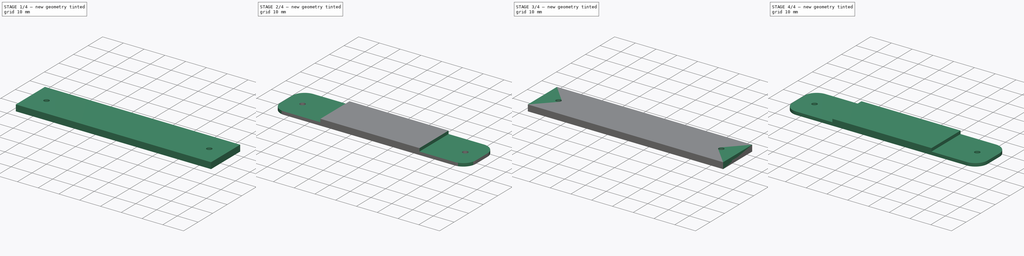
[diagram: build sequence overview — one tinted view per stage of 4, left to right]
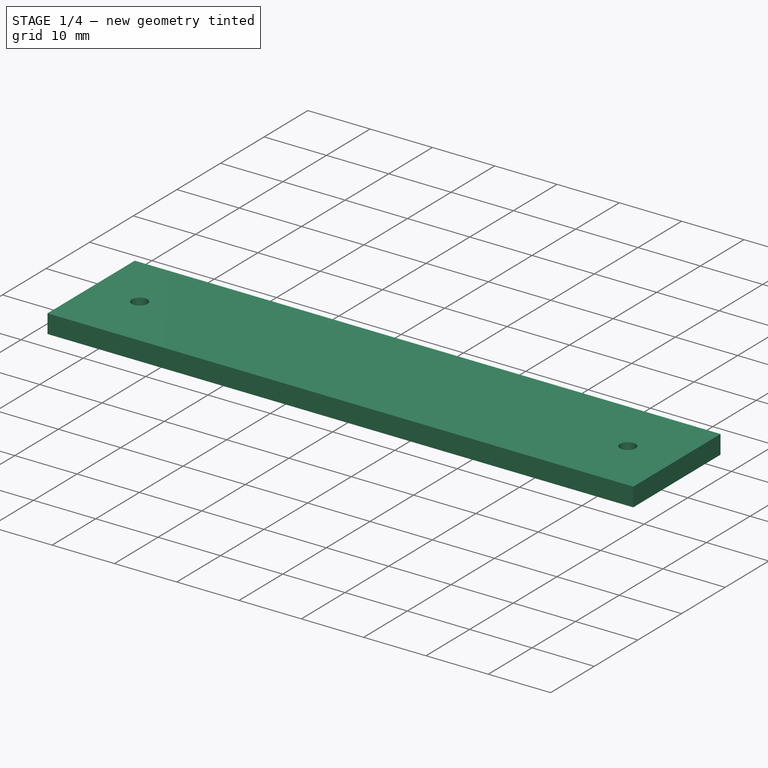
[diagram: stage 1 of 4 — iso view after this stage's code; geometry added in this stage tinted green]
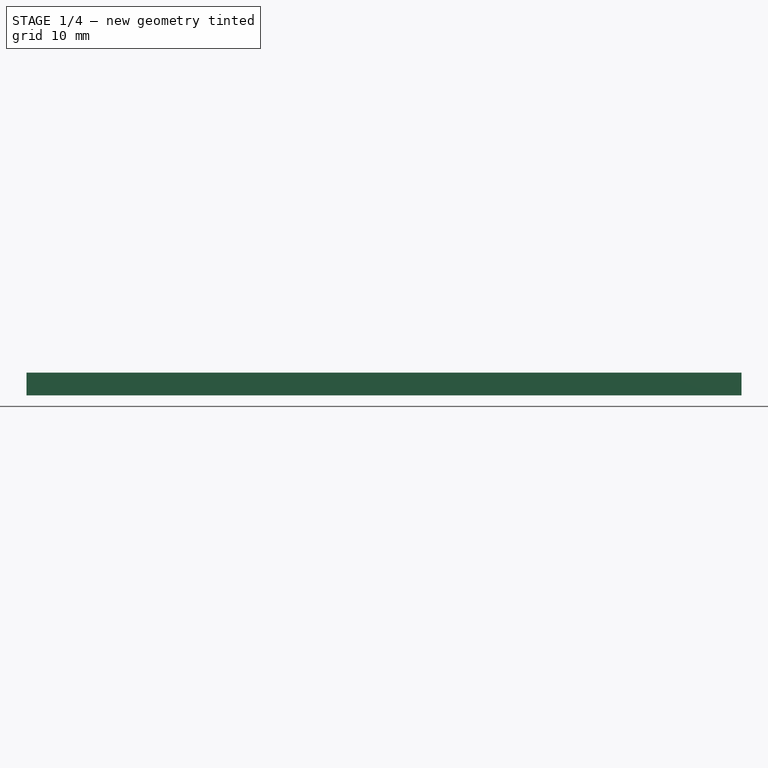
[diagram: stage 1 of 4 — front view after this stage's code; geometry added in this stage tinted green]
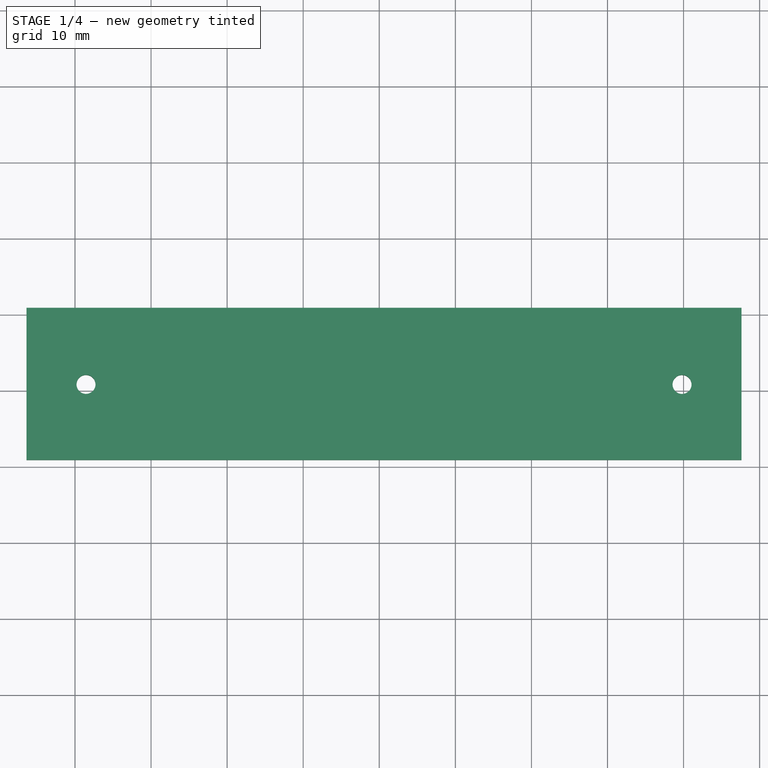
[diagram: stage 1 of 4 — top view after this stage's code; geometry added in this stage tinted green]
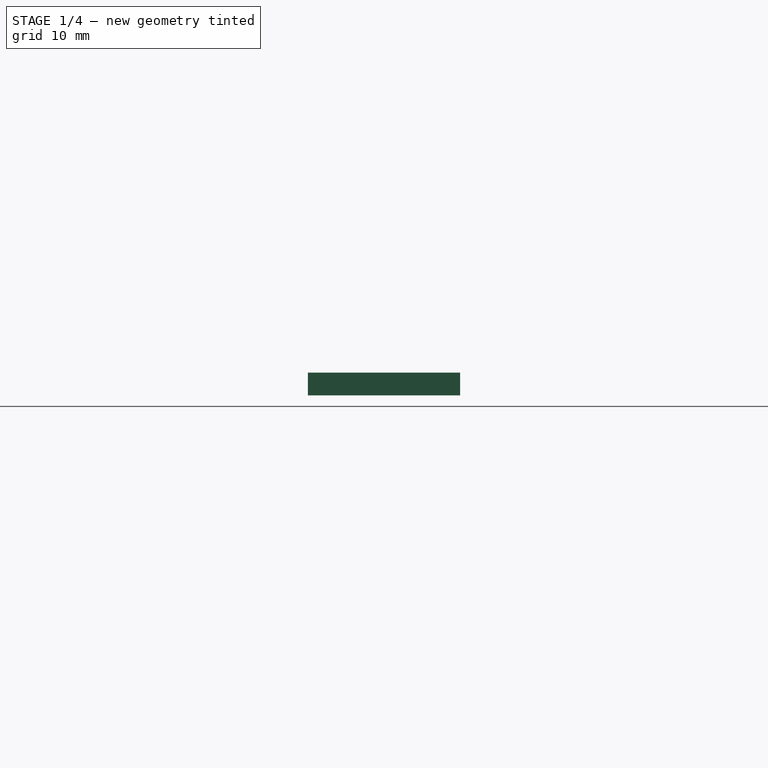
[diagram: stage 1 of 4 — right view after this stage's code; geometry added in this stage tinted green]
FCSTD DOCUMENT  (FreeCAD 0.21R33771 (Git))
Label: Lighting board and cover Plate assembly
License: All rights reserved
LicenseURL: http://en.wikipedia.org/wiki/All_rights_reserved
objects: Part::Feature×52, App::Part×51, Sketcher::SketchObject×8, PartDesign::Pocket×4, Part::Extrusion×2, PartDesign::FeatureBase×2, PartDesign::Hole×2, PartDesign::Fillet×2, PartDesign::Body×2, App::MeasureDistance×1
note: 82 computed .brp shape members not serialized (recipe doc carries the construction recipe); baked Part::Feature solids carry a one-line shape summary decoded from their .brp

FEATURE [PartDesign::Body] Body
  BaseFeature = -> Extrude
  Group = -> [BaseFeature,Sketch001,Hole,Fillet,Sketch002,Pocket,Sketch003,Pocket001]
  Origin = -> Origin048
  Tip = -> Pocket001
FEATURE [App::Part] Part002  label="B1 Top plate"
  Group = -> [Body,Sketch,Extrude]
  Origin = -> Origin047
FEATURE [App::Part] Part004  label="Light 1"
  Group = -> [Part,Part__Feature048,Part__Feature049,Part002]
  Origin = -> Origin095
FEATURE [Sketcher::SketchObject] Sketch004
  FullyConstrained = false
  sketch-geometry (5):
    g0: LineSegment StartX=-46.38 StartY=20.9 StartZ=0 EndX=47.62 EndY=20.9 EndZ=0
    g1: LineSegment StartX=47.62 StartY=20.9 StartZ=0 EndX=47.62 EndY=0.899999 EndZ=0
    g2: LineSegment StartX=47.62 StartY=0.899999 StartZ=0 EndX=-46.38 EndY=0.899999 EndZ=0
    g3: LineSegment StartX=-46.38 StartY=0.899999 StartZ=0 EndX=-46.38 EndY=20.9 EndZ=0
    g4: LineSegment StartX=-41.3775 StartY=18.375 StartZ=0 EndX=-41.3775 EndY=20.9 EndZ=0
  constraints (11):
    c: Coincident(g0,g1)
    c: Coincident(g1,g2)
    c: Coincident(g2,g3)
    c: Coincident(g3,g0)
    c: Horizontal(g0)
    c: Horizontal(g2)
    c: Vertical(g1)
    c: Vertical(g3)
    c: DistanceX(g0,g0) = 94
    c: DistanceY(g3,g3) = 20
    c: Vertical(g4)
FEATURE [Part::Extrusion] Extrude001
  Base = -> Sketch004
  Dir = (0,0,1)
  DirMode = 2
  FaceMakerClass = Part::FaceMakerBullseye
  LengthFwd = 3
  LengthRev = 0
  Solid = true
  Symmetric = false
FEATURE [PartDesign::FeatureBase] BaseFeature001
  BaseFeature = -> Extrude001
FEATURE [Sketcher::SketchObject] Sketch005
  FullyConstrained = false
  MapMode = 5
  Placement = pos=(0,0,3) rot=(0,0,1;0rad)
  Support = -> [BaseFeature001]
  sketch-geometry (2):
    g0: Circle CenterX=-38.55 CenterY=10.83 CenterZ=0 NormalX=0 NormalY=0 NormalZ=1 AngleXU=0 Radius=1.25
    g1: Circle CenterX=39.8 CenterY=10.8236 CenterZ=0 NormalX=0 NormalY=0 NormalZ=1 AngleXU=0 Radius=1.25
  constraints (2):
    c: Diameter(g0) = 2.5
    c: Diameter(g1) = 2.5
FEATURE [PartDesign::Hole] Hole001
  BaseFeature = -> BaseFeature001
  CustomThreadClearance = 0
  Depth = 3
  DepthType = 0
  Diameter = 2.5
  DrillForDepth = false
  DrillPoint = 0
  DrillPointAngle = 118
  HoleCutCountersinkAngle = 90
  HoleCutCustomValues = false
  HoleCutDepth = 0
  HoleCutDiameter = 6.1
  HoleCutType = 0
  ModelThread = false
  Profile = -> Sketch005
  Tapered = false
  TaperedAngle = 90
  ThreadClass = 0
  ThreadDepth = 3
  ThreadDepthType = 0
  ThreadDirection = 0
  ThreadFit = 0
  ThreadSize = 0
  ThreadType = 0
  Threaded = false
  UseCustomThreadClearance = false
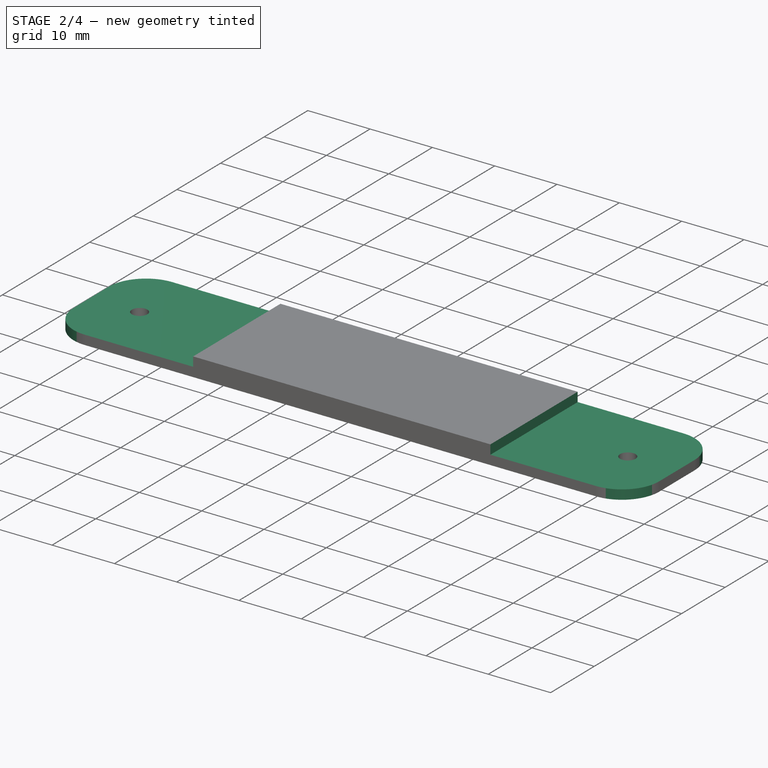
[diagram: stage 2 of 4 — iso view after this stage's code; geometry added in this stage tinted green]
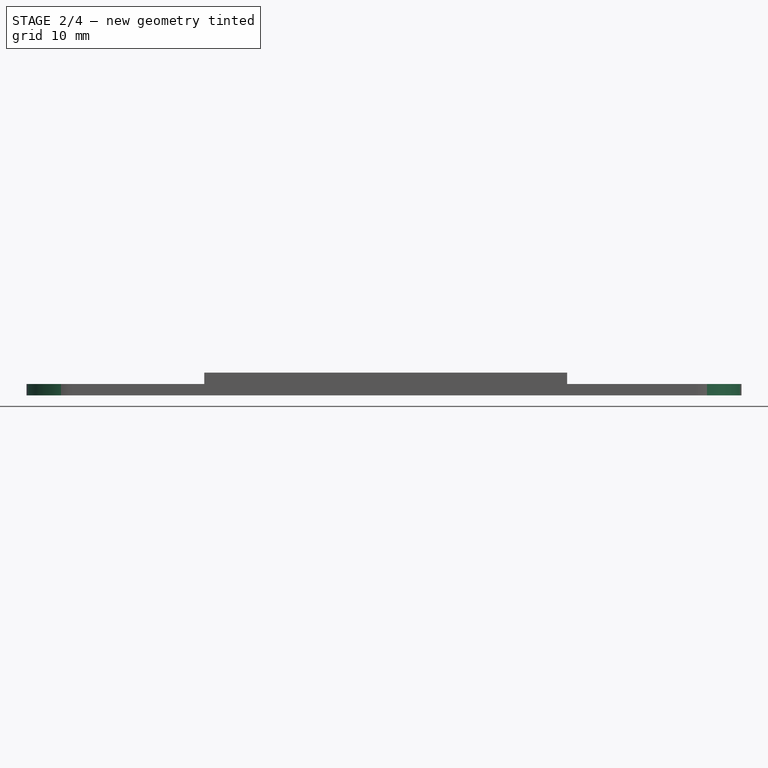
[diagram: stage 2 of 4 — front view after this stage's code; geometry added in this stage tinted green]
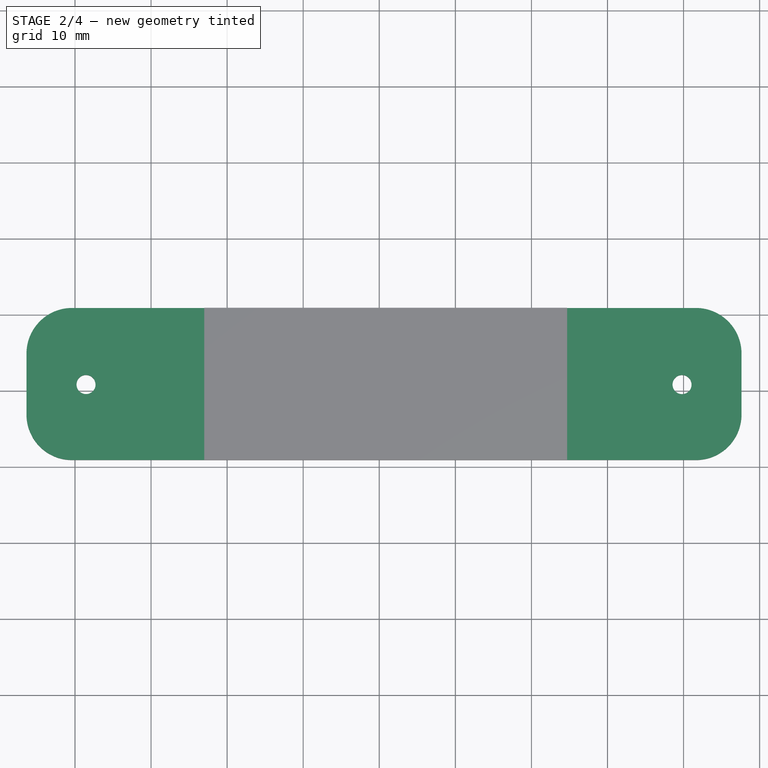
[diagram: stage 2 of 4 — top view after this stage's code; geometry added in this stage tinted green]
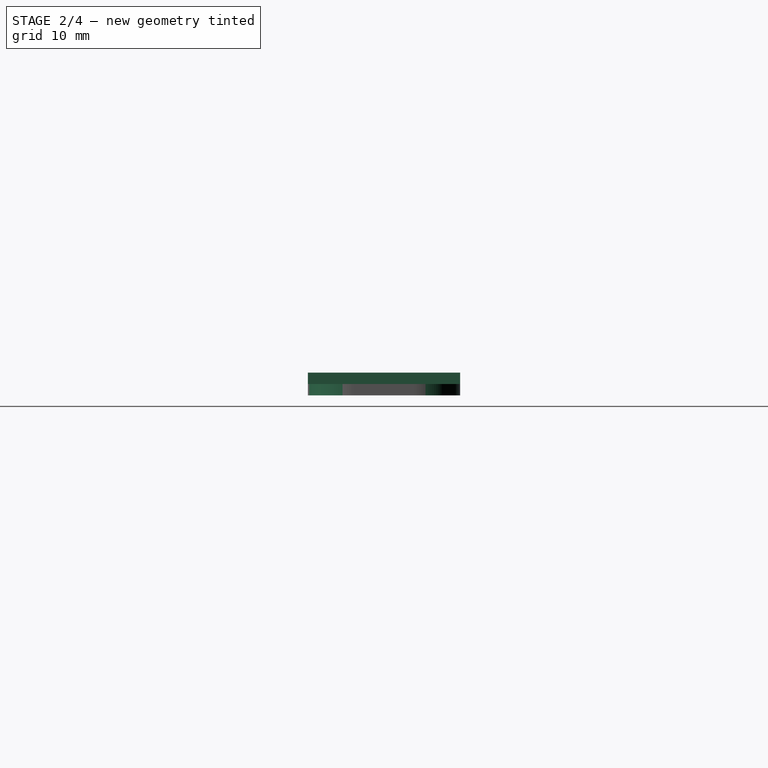
[diagram: stage 2 of 4 — right view after this stage's code; geometry added in this stage tinted green]
FEATURE [PartDesign::Fillet] Fillet001
  Base = -> Hole001 [Edge5,Edge1,Edge2,Edge8]
  BaseFeature = -> Hole001
  Radius = 6
  SupportTransform = false
  UseAllEdges = false
FEATURE [Sketcher::SketchObject] Sketch006
  FullyConstrained = false
  MapMode = 5
  Placement = pos=(0,0,3) rot=(0,0,1;0rad)
  Support = -> [Fillet001]
  sketch-geometry (4):
    g0: LineSegment StartX=-23.0016 StartY=0.200001 StartZ=0 EndX=-46.4016 EndY=0.200001 EndZ=0
    g1: LineSegment StartX=-46.4016 StartY=0.200001 StartZ=0 EndX=-46.4016 EndY=21.2 EndZ=0
    g2: LineSegment StartX=-46.4016 StartY=21.2 StartZ=0 EndX=-23.0016 EndY=21.2 EndZ=0
    g3: LineSegment StartX=-23.0016 StartY=21.2 StartZ=0 EndX=-23.0016 EndY=0.200001 EndZ=0
  constraints (10):
    c: Coincident(g0,g1)
    c: Coincident(g1,g2)
    c: Coincident(g2,g3)
    c: Coincident(g3,g0)
    c: Horizontal(g0)
    c: Horizontal(g2)
    c: Vertical(g1)
    c: Vertical(g3)
    c: DistanceX(g2,g2) = 23.4
    c: DistanceY(g1,g1) = 21
FEATURE [PartDesign::Pocket] Pocket002
  BaseFeature = -> Fillet001
  Direction = (0,0,-1)
  Length = 1.5
  Length2 = 5
  Profile = -> Sketch006
  ReferenceAxis = -> Sketch006 [N_Axis]
  Type = 0
FEATURE [Sketcher::SketchObject] Sketch007
  FullyConstrained = false
  MapMode = 5
  Placement = pos=(0,0,3) rot=(0,0,1;0rad)
  Support = -> [Pocket002]
  sketch-geometry (4):
    g0: LineSegment StartX=24.7 StartY=21.1996 StartZ=0 EndX=48.1 EndY=21.1996 EndZ=0
    g1: LineSegment StartX=48.1 StartY=21.1996 StartZ=0 EndX=48.1 EndY=0.199637 EndZ=0
    g2: LineSegment StartX=48.1 StartY=0.199637 StartZ=0 EndX=24.7 EndY=0.199637 EndZ=0
    g3: LineSegment StartX=24.7 StartY=0.199637 StartZ=0 EndX=24.7 EndY=21.1996 EndZ=0
  constraints (10):
    c: Coincident(g0,g1)
    c: Coincident(g1,g2)
    c: Coincident(g2,g3)
    c: Coincident(g3,g0)
    c: Horizontal(g0)
    c: Horizontal(g2)
    c: Vertical(g1)
    c: Vertical(g3)
    c: DistanceX(g0,g0) = 23.4
    c: DistanceY(g3,g3) = 21
FEATURE [PartDesign::Pocket] Pocket003
  BaseFeature = -> Pocket002
  Direction = (0,0,-1)
  Length = 1.5
  Length2 = 5
  Profile = -> Sketch007
  ReferenceAxis = -> Sketch007 [N_Axis]
  Type = 0
FEATURE [PartDesign::Body] Body001
  BaseFeature = -> Extrude001
  Group = -> [BaseFeature001,Sketch005,Hole001,Fillet001,Sketch006,Pocket002,Sketch007,Pocket003]
  Origin = -> Origin098
  Tip = -> Pocket003
FEATURE [App::Part] Part006  label="B2 Top plate"
  Group = -> [Body001,Sketch004,Extrude001]
  Origin = -> Origin097
  Placement = pos=(-0.62,-21.79,0) rot=(0,0,1;0rad)
FEATURE [App::Part] Part005  label="Light 2"
  Group = -> [Part003,Part__Feature097,Part__Feature098,Part006]
  Origin = -> Origin096
FEATURE [App::MeasureDistance] Distance  label="Distance: 22.79241 mm"
  Distance = 22.7924
  P1 = (47.62,10.8236,1.5)
  P2 = (24.8282,10.9912,1.5)
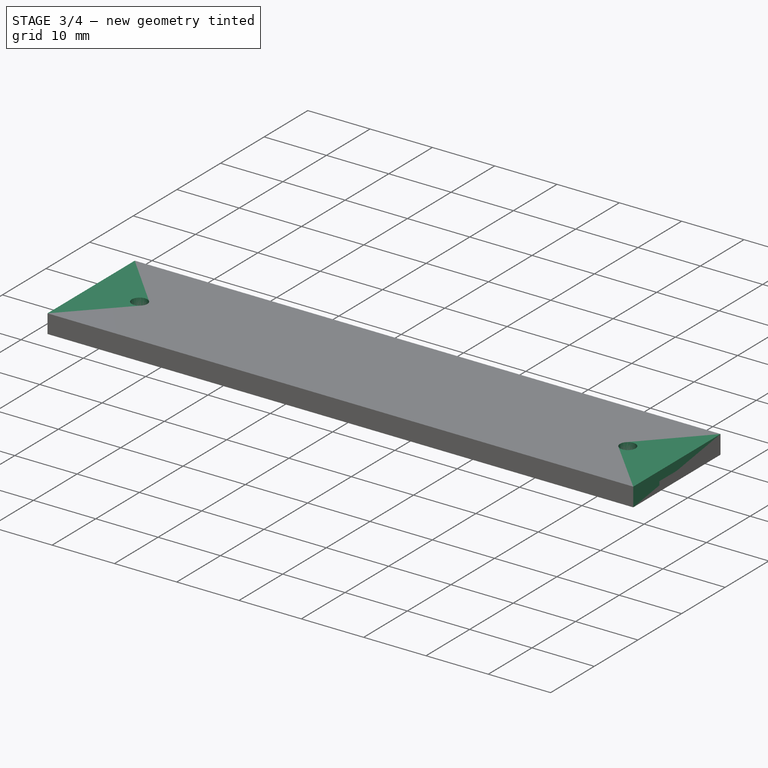
[diagram: stage 3 of 4 — iso view after this stage's code; geometry added in this stage tinted green]
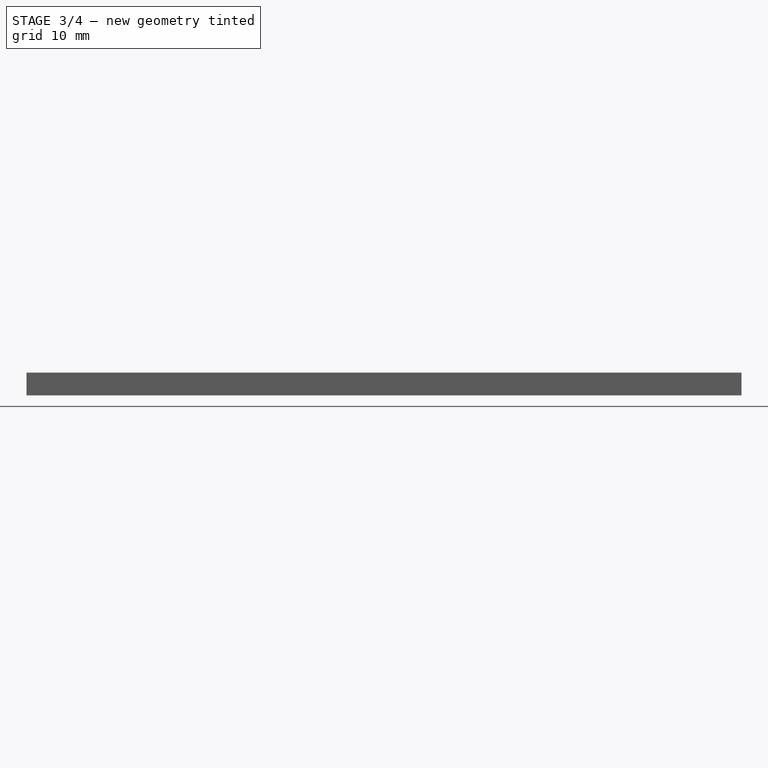
[diagram: stage 3 of 4 — front view after this stage's code; geometry added in this stage tinted green]
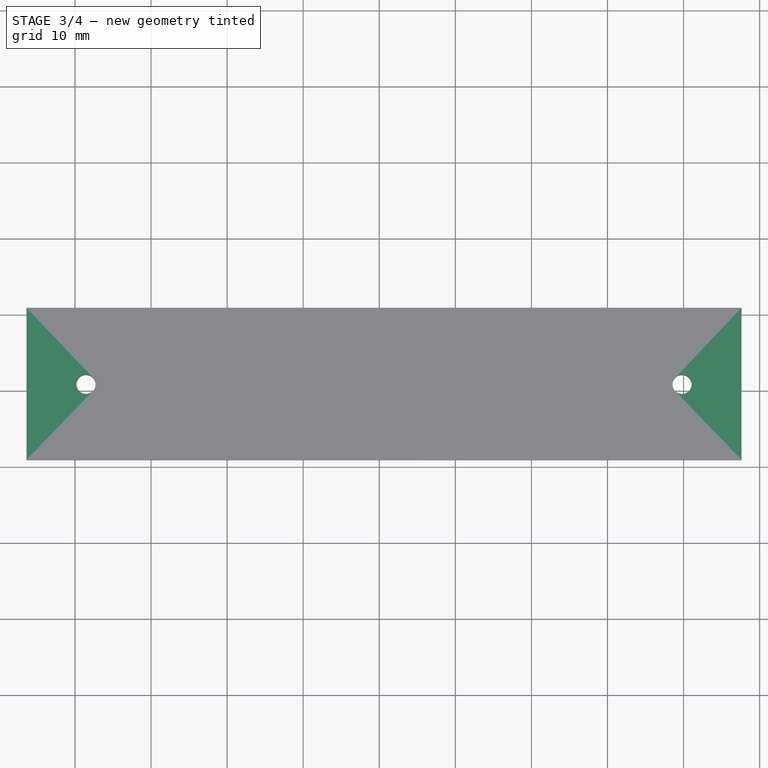
[diagram: stage 3 of 4 — top view after this stage's code; geometry added in this stage tinted green]
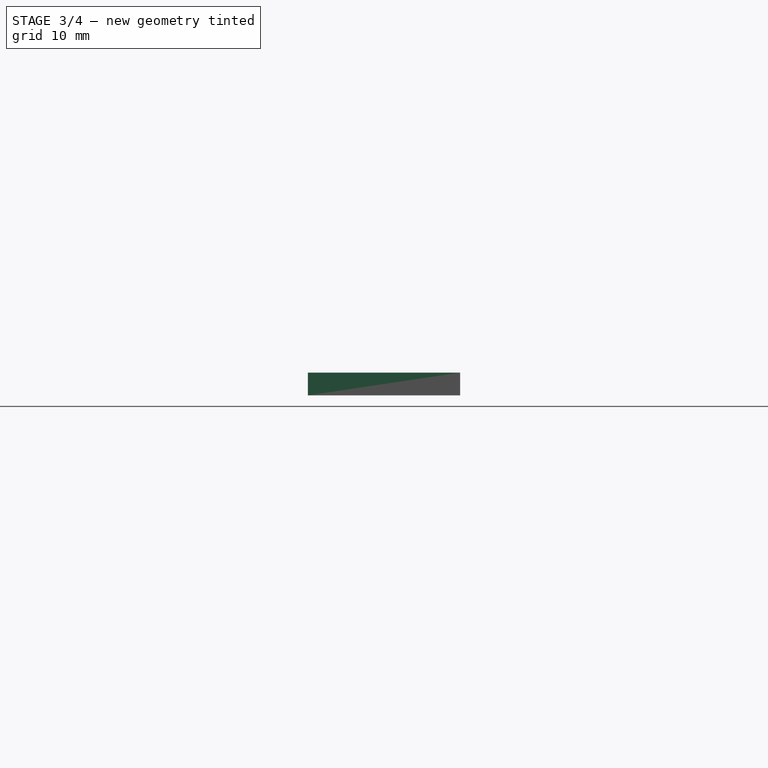
[diagram: stage 3 of 4 — right view after this stage's code; geometry added in this stage tinted green]
FEATURE [Sketcher::SketchObject] Sketch
  FullyConstrained = false
  sketch-geometry (5):
    g0: LineSegment StartX=-46.38 StartY=20.9 StartZ=0 EndX=47.62 EndY=20.9 EndZ=0
    g1: LineSegment StartX=47.62 StartY=20.9 StartZ=0 EndX=47.62 EndY=0.899999 EndZ=0
    g2: LineSegment StartX=47.62 StartY=0.899999 StartZ=0 EndX=-46.38 EndY=0.899999 EndZ=0
    g3: LineSegment StartX=-46.38 StartY=0.899999 StartZ=0 EndX=-46.38 EndY=20.9 EndZ=0
    g4: LineSegment StartX=-41.3775 StartY=18.375 StartZ=0 EndX=-41.3775 EndY=20.9 EndZ=0
  constraints (11):
    c: Coincident(g0,g1)
    c: Coincident(g1,g2)
    c: Coincident(g2,g3)
    c: Coincident(g3,g0)
    c: Horizontal(g0)
    c: Horizontal(g2)
    c: Vertical(g1)
    c: Vertical(g3)
    c: DistanceX(g0,g0) = 94
    c: DistanceY(g3,g3) = 20
    c: Vertical(g4)
FEATURE [Part::Extrusion] Extrude
  Base = -> Sketch
  Dir = (0,0,1)
  DirMode = 2
  FaceMakerClass = Part::FaceMakerBullseye
  LengthFwd = 3
  LengthRev = 0
  Solid = true
  Symmetric = false
FEATURE [PartDesign::FeatureBase] BaseFeature
  BaseFeature = -> Extrude
FEATURE [Sketcher::SketchObject] Sketch001
  FullyConstrained = false
  MapMode = 5
  Placement = pos=(0,0,3) rot=(0,0,1;0rad)
  Support = -> [BaseFeature]
  sketch-geometry (2):
    g0: Circle CenterX=-38.55 CenterY=10.83 CenterZ=0 NormalX=0 NormalY=0 NormalZ=1 AngleXU=0 Radius=1.25
    g1: Circle CenterX=39.8 CenterY=10.8236 CenterZ=0 NormalX=0 NormalY=0 NormalZ=1 AngleXU=0 Radius=1.25
  constraints (2):
    c: Diameter(g0) = 2.5
    c: Diameter(g1) = 2.5
FEATURE [PartDesign::Hole] Hole
  BaseFeature = -> BaseFeature
  CustomThreadClearance = 0
  Depth = 3
  DepthType = 0
  Diameter = 2.5
  DrillForDepth = false
  DrillPoint = 0
  DrillPointAngle = 118
  HoleCutCountersinkAngle = 90
  HoleCutCustomValues = false
  HoleCutDepth = 0
  HoleCutDiameter = 6.1
  HoleCutType = 0
  ModelThread = false
  Profile = -> Sketch001
  Tapered = false
  TaperedAngle = 90
  ThreadClass = 0
  ThreadDepth = 3
  ThreadDepthType = 0
  ThreadDirection = 0
  ThreadFit = 0
  ThreadSize = 0
  ThreadType = 0
  Threaded = false
  UseCustomThreadClearance = false
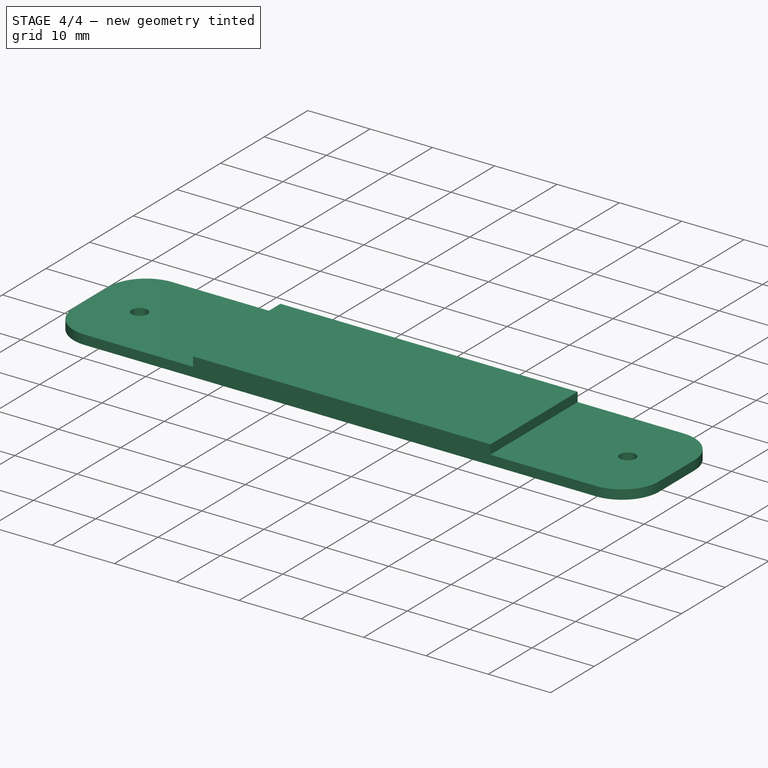
[diagram: stage 4 of 4 — iso view after this stage's code; geometry added in this stage tinted green]
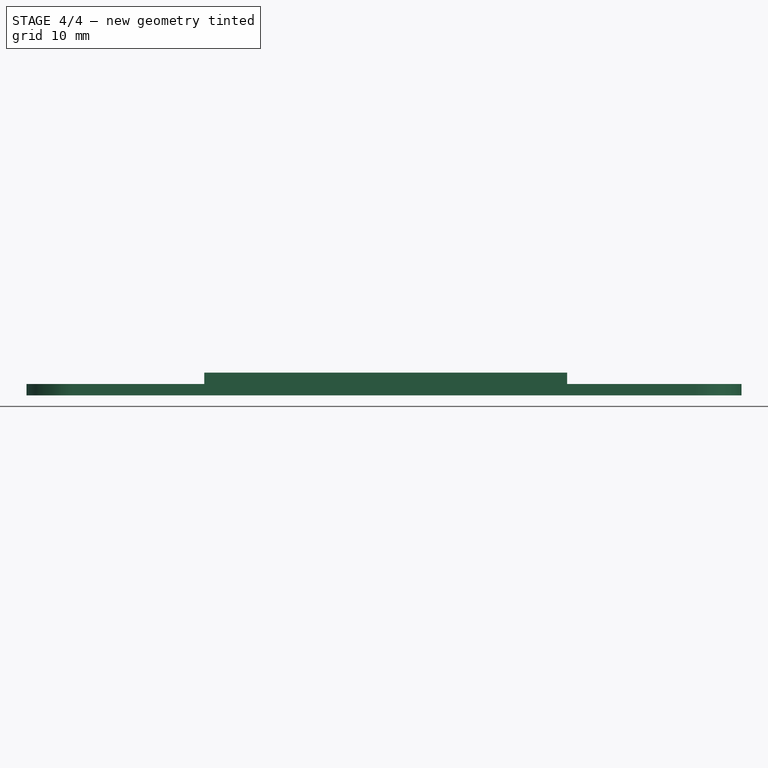
[diagram: stage 4 of 4 — front view after this stage's code; geometry added in this stage tinted green]
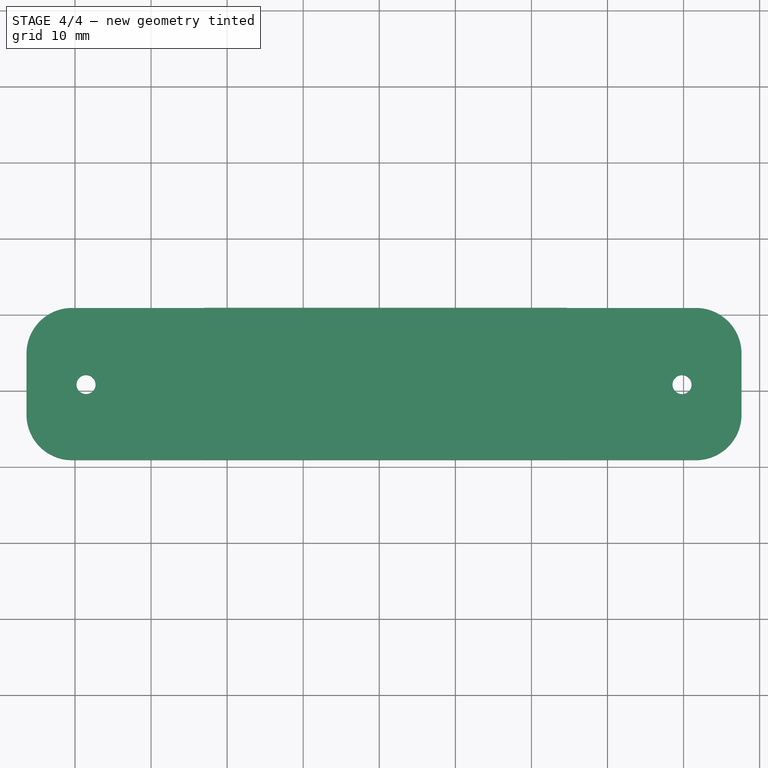
[diagram: stage 4 of 4 — top view after this stage's code; geometry added in this stage tinted green]
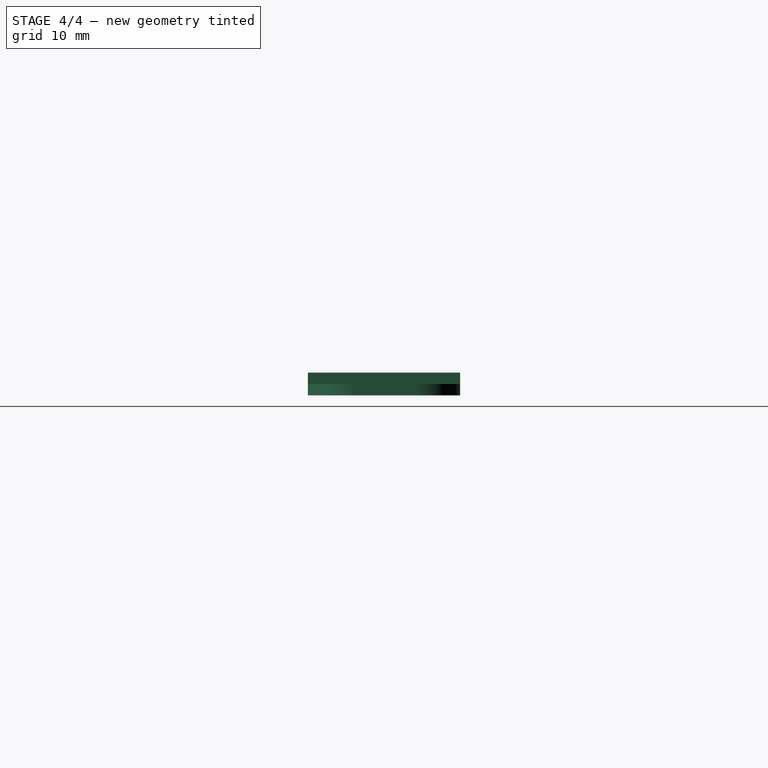
[diagram: stage 4 of 4 — right view after this stage's code; geometry added in this stage tinted green]
FEATURE [PartDesign::Fillet] Fillet
  Base = -> Hole [Edge5,Edge1,Edge2,Edge8]
  BaseFeature = -> Hole
  Radius = 6
  SupportTransform = false
  UseAllEdges = false
FEATURE [Part::Feature] Part__Feature048  label="M2.5_MF_TORRETTA"
  Placement = pos=(-38.55,10.82,-10.01) rot=(0,0,1;0rad)
  shape: bbox 5.78 x 5.78 x 16.02 mm, 16 faces (baked)
FEATURE [Part::Feature] Part__Feature049  label="M2.5_MF_TORRETTA001"
  Placement = pos=(39.79,10.82,-10.01) rot=(0,0,1;0rad)
  shape: bbox 5.78 x 5.78 x 16.02 mm, 16 faces (baked)
FEATURE [Part::Feature] Part__Feature  label="SOLID"
  shape: bbox 3.2 x 1.6 x 0.55 mm, 26 faces (baked)
FEATURE [App::Part] R_1206_3216Metric
  Group = -> [Part__Feature]
  Origin = -> Origin
  Placement = pos=(-25.2625,6.65,1.65) rot=(0,0,-1;1.5708rad)
FEATURE [Part::Feature] Part__Feature050  label="SOLID001"
  shape: bbox 5.4 x 5 x 1.6 mm, 68 faces (baked)
FEATURE [App::Part] LED_WS2812B_PLCC4_5_0x5_0mm_P3_2mm  label="LED_WS2812B_PLCC4_5.0x5.0mm_P3.2mm"
  Group = -> [Part__Feature050]
  Origin = -> Origin049
  Placement = pos=(-19.5875,-10.875,1.65) rot=(0,0,1;0rad)
FEATURE [Part::Feature] Part__Feature051  label="SOLID002"
  shape: bbox 5.4 x 5 x 1.6 mm, 68 faces (baked)
FEATURE [App::Part] LED_WS2812B_PLCC4_5_0x5_0mm_P3_2mm001  label="LED_WS2812B_PLCC4_5.0x5.0mm_P3.2mm001"
  Group = -> [Part__Feature051]
  Origin = -> Origin050
  Placement = pos=(19.0125,-10.875,1.65) rot=(0,0,1;0rad)
FEATURE [Part::Feature] Part__Feature052  label="SOLID003"
  shape: bbox 3.2 x 1.6 x 1.6 mm, 28 faces (baked)
FEATURE [App::Part] C_1206_3216Metric
  Group = -> [Part__Feature052]
  Origin = -> Origin051
  Placement = pos=(-7.575,15.225,1.65) rot=(0,0,1;0rad)
FEATURE [Part::Feature] Part__Feature053  label="SOLID004"
  shape: bbox 6.985 x 6.828 x 5.4 mm, 41 faces (baked)
FEATURE [App::Part] CP_Elec_5x5_4  label="CP_Elec_5x5.4"
  Group = -> [Part__Feature053]
  Origin = -> Origin052
  Placement = pos=(-32.5875,14.125,1.65) rot=(0,0,1;0rad)
FEATURE [Part::Feature] Part__Feature054  label="SOLID005"
  shape: bbox 7 x 4.95 x 4.2 mm, 162 faces (baked)
FEATURE [App::Part] JST_GH_BM03B_GHS_TBT_1x03_1MP_P1_25mm_Vertical  label="JST_GH_BM03B-GHS-TBT_1x03-1MP_P1.25mm_Vertical"
  Group = -> [Part__Feature054]
  Origin = -> Origin053
  Placement = pos=(-32.2625,-7.75,1.65) rot=(0,0,1;0rad)
FEATURE [Part::Feature] Part__Feature055  label="SOLID006"
  shape: bbox 7 x 4.95 x 4.2 mm, 162 faces (baked)
FEATURE [App::Part] JST_GH_BM03B_GHS_TBT_1x03_1MP_P1_25mm_Vertical001  label="JST_GH_BM03B-GHS-TBT_1x03-1MP_P1.25mm_Vertical001"
  Group = -> [Part__Feature055]
  Origin = -> Origin054
  Placement = pos=(32.3125,7.9,1.65) rot=(0,0,1;3.14159rad)
FEATURE [Part::Feature] Part__Feature056  label="SOLID007"
  shape: bbox 5.4 x 5 x 1.6 mm, 68 faces (baked)
FEATURE [App::Part] LED_WS2812B_PLCC4_5_0x5_0mm_P3_2mm002  label="LED_WS2812B_PLCC4_5.0x5.0mm_P3.2mm002"
  Group = -> [Part__Feature056]
  Origin = -> Origin055
  Placement = pos=(-6.1875,10.825,1.65) rot=(0,0,1;3.14159rad)
FEATURE [Part::Feature] Part__Feature057  label="SOLID008"
  shape: bbox 3.2 x 1.6 x 1.6 mm, 28 faces (baked)
FEATURE [App::Part] C_1206_3216Metric001
  Group = -> [Part__Feature057]
  Origin = -> Origin056
  Placement = pos=(18.1125,15.225,1.65) rot=(0,0,1;0rad)
FEATURE [Part::Feature] Part__Feature058  label="SOLID009"
  shape: bbox 3.2 x 1.6 x 1.6 mm, 28 faces (baked)
FEATURE [App::Part] C_1206_3216Metric002
  Group = -> [Part__Feature058]
  Origin = -> Origin057
  Placement = pos=(-5.3375,-15.275,1.65) rot=(0,0,1;3.14159rad)
FEATURE [Part::Feature] Part__Feature059  label="SOLID010"
  shape: bbox 3.2 x 1.6 x 1.6 mm, 28 faces (baked)
FEATURE [App::Part] C_1206_3216Metric003
  Group = -> [Part__Feature059]
  Origin = -> Origin058
  Placement = pos=(5.25,15.2,1.65) rot=(0,0,1;0rad)
FEATURE [Part::Feature] Part__Feature060  label="SOLID011"
  shape: bbox 3.2 x 1.6 x 1.6 mm, 28 faces (baked)
FEATURE [App::Part] C_1206_3216Metric004
  Group = -> [Part__Feature060]
  Origin = -> Origin059
  Placement = pos=(-18.2125,-15.225,1.65) rot=(0,0,1;3.14159rad)
FEATURE [Part::Feature] Part__Feature061  label="SOLID012"
  shape: bbox 7 x 4.95 x 4.2 mm, 162 faces (baked)
FEATURE [App::Part] JST_GH_BM03B_GHS_TBT_1x03_1MP_P1_25mm_Vertical002  label="JST_GH_BM03B-GHS-TBT_1x03-1MP_P1.25mm_Vertical002"
  Group = -> [Part__Feature061]
  Origin = -> Origin060
  Placement = pos=(32.3125,-6.75,1.65) rot=(0,0,1;0rad)
FEATURE [Part::Feature] Part__Feature062  label="SOLID013"
  shape: bbox 3.2 x 1.6 x 1.6 mm, 28 faces (baked)
FEATURE [App::Part] C_1206_3216Metric005
  Group = -> [Part__Feature062]
  Origin = -> Origin061
  Placement = pos=(-20.3625,15.225,1.65) rot=(0,0,1;0rad)
FEATURE [Part::Feature] Part__Feature063  label="SOLID014"
  shape: bbox 3.2 x 1.6 x 1.6 mm, 28 faces (baked)
FEATURE [App::Part] C_1206_3216Metric006
  Group = -> [Part__Feature063]
  Origin = -> Origin062
  Placement = pos=(20.3875,-15.1,1.65) rot=(0,0,1;3.14159rad)
FEATURE [Part::Feature] Part__Feature064  label="SOLID015"
  shape: bbox 5.4 x 5 x 1.6 mm, 68 faces (baked)
FEATURE [App::Part] LED_WS2812B_PLCC4_5_0x5_0mm_P3_2mm003  label="LED_WS2812B_PLCC4_5.0x5.0mm_P3.2mm003"
  Group = -> [Part__Feature064]
  Origin = -> Origin063
  Placement = pos=(-6.7375,-10.875,1.65) rot=(0,0,1;0rad)
FEATURE [Part::Feature] Part__Feature065  label="SOLID016"
  shape: bbox 5.4 x 5 x 1.6 mm, 68 faces (baked)
FEATURE [App::Part] LED_WS2812B_PLCC4_5_0x5_0mm_P3_2mm004  label="LED_WS2812B_PLCC4_5.0x5.0mm_P3.2mm004"
  Group = -> [Part__Feature065]
  Origin = -> Origin064
  Placement = pos=(-19.0375,10.825,1.65) rot=(0,0,1;3.14159rad)
FEATURE [Part::Feature] Part__Feature066  label="SOLID017"
  shape: bbox 5.4 x 5 x 1.6 mm, 68 faces (baked)
FEATURE [App::Part] LED_WS2812B_PLCC4_5_0x5_0mm_P3_2mm005  label="LED_WS2812B_PLCC4_5.0x5.0mm_P3.2mm005"
  Group = -> [Part__Feature066]
  Origin = -> Origin065
  Placement = pos=(6.6375,10.825,1.65) rot=(0,0,1;3.14159rad)
FEATURE [Part::Feature] Part__Feature067  label="SOLID018"
  shape: bbox 5.4 x 5 x 1.6 mm, 68 faces (baked)
FEATURE [App::Part] LED_WS2812B_PLCC4_5_0x5_0mm_P3_2mm006  label="LED_WS2812B_PLCC4_5.0x5.0mm_P3.2mm006"
  Group = -> [Part__Feature067]
  Origin = -> Origin066
  Placement = pos=(19.5125,10.825,1.65) rot=(0,0,1;3.14159rad)
FEATURE [Part::Feature] Part__Feature068  label="SOLID019"
  shape: bbox 5.4 x 5 x 1.6 mm, 68 faces (baked)
FEATURE [App::Part] LED_WS2812B_PLCC4_5_0x5_0mm_P3_2mm007  label="LED_WS2812B_PLCC4_5.0x5.0mm_P3.2mm007"
  Group = -> [Part__Feature068]
  Origin = -> Origin067
  Placement = pos=(6.1375,-10.875,1.65) rot=(0,0,1;0rad)
FEATURE [Part::Feature] Part__Feature069  label="SOLID020"
  shape: bbox 3.2 x 1.6 x 1.6 mm, 28 faces (baked)
FEATURE [App::Part] C_1206_3216Metric007
  Group = -> [Part__Feature069]
  Origin = -> Origin068
  Placement = pos=(7.4875,-15.25,1.65) rot=(0,0,1;3.14159rad)
FEATURE [Part::Feature] Part__Feature070  label="SOLID021"
  shape: bbox 7 x 4.95 x 4.2 mm, 162 faces (baked)
FEATURE [App::Part] JST_GH_BM03B_GHS_TBT_1x03_1MP_P1_25mm_Vertical003  label="JST_GH_BM03B-GHS-TBT_1x03-1MP_P1.25mm_Vertical003"
  Group = -> [Part__Feature070]
  Origin = -> Origin069
  Placement = pos=(-32.3375,6.75,1.65) rot=(0,0,1;3.14159rad)
FEATURE [Part::Feature] Part__Feature071  label="_autosave-RGB LED Mounting Board PCB1"
  shape: bbox 84 x 15 x 1.6 mm, 8 faces (baked)
FEATURE [Part::Feature] Part__Feature072  label="_autosave-RGB LED Mounting Board PCB2"
  shape: bbox 84 x 15 x 1.6 mm, 8 faces (baked)
FEATURE [App::Part] RGB_LED_Mounting_Board_1  label="RGB LED Mounting Board 1"
  Group = -> [R_1206_3216Metric,LED_WS2812B_PLCC4_5_0x5_0mm_P3_2mm,LED_WS2812B_PLCC4_5_0x5_0mm_P3_2mm001,C_1206_3216Metric,CP_Elec_5x5_4,JST_GH_BM03B_GHS_TBT_1x03_1MP_P1_25mm_Vertical,JST_GH_BM03B_GHS_TBT_1x03_1MP_P1_25mm_Vertical001,LED_WS2812B_PLCC4_5_0x5_0mm_P3_2mm002,C_1206_3216Metric001,C_1206_3216Metric002,C_1206_3216Metric003,C_1206_3216Metric004,JST_GH_BM03B_GHS_TBT_1x03_1MP_P1_25mm_Vertical002,+11 more]
  Origin = -> Origin070
FEATURE [Part::Feature] Part__Feature073  label="SOLID022"
  shape: bbox 3.2 x 1.6 x 0.55 mm, 26 faces (baked)
FEATURE [Part::Feature] Part__Feature074  label="SOLID023"
  shape: bbox 3.2 x 1.6 x 1.6 mm, 28 faces (baked)
FEATURE [App::Part] C_1206_3216Metric008
  Group = -> [Part__Feature074]
  Origin = -> Origin073
  Placement = pos=(-7.575,15.225,1.65) rot=(0,0,1;0rad)
FEATURE [Part::Feature] Part__Feature075  label="SOLID024"
  shape: bbox 6.985 x 6.828 x 5.4 mm, 41 faces (baked)
FEATURE [App::Part] CP_Elec_5x5_005  label="CP_Elec_5x5.005"
  Group = -> [Part__Feature075]
  Origin = -> Origin074
  Placement = pos=(-32.5875,14.125,1.65) rot=(0,0,1;0rad)
FEATURE [Part::Feature] Part__Feature076  label="SOLID025"
  shape: bbox 7 x 4.95 x 4.2 mm, 162 faces (baked)
FEATURE [App::Part] JST_GH_BM03B_GHS_TBT_1x03_1MP_P1_25mm_Vertical004  label="JST_GH_BM03B-GHS-TBT_1x03-1MP_P1.25mm_Vertical004"
  Group = -> [Part__Feature076]
  Origin = -> Origin075
  Placement = pos=(32.3125,7.9,1.65) rot=(0,0,1;3.14159rad)
FEATURE [Part::Feature] Part__Feature077  label="SOLID026"
  shape: bbox 5.4 x 5 x 1.6 mm, 68 faces (baked)
FEATURE [App::Part] LED_WS2812B_PLCC4_5_0x5_0mm_P3_2mm008  label="LED_WS2812B_PLCC4_5.0x5.0mm_P3.2mm008"
  Group = -> [Part__Feature077]
  Origin = -> Origin076
  Placement = pos=(-6.1875,10.825,1.65) rot=(0,0,1;3.14159rad)
FEATURE [Part::Feature] Part__Feature078  label="SOLID027"
  shape: bbox 3.2 x 1.6 x 1.6 mm, 28 faces (baked)
FEATURE [App::Part] C_1206_3216Metric009
  Group = -> [Part__Feature078]
  Origin = -> Origin077
  Placement = pos=(18.1125,15.225,1.65) rot=(0,0,1;0rad)
FEATURE [Part::Feature] Part__Feature079  label="SOLID028"
  shape: bbox 3.2 x 1.6 x 1.6 mm, 28 faces (baked)
FEATURE [App::Part] C_1206_3216Metric010
  Group = -> [Part__Feature079]
  Origin = -> Origin078
  Placement = pos=(5.25,15.2,1.65) rot=(0,0,1;0rad)
FEATURE [Part::Feature] Part__Feature080  label="SOLID029"
  shape: bbox 3.2 x 1.6 x 1.6 mm, 28 faces (baked)
FEATURE [App::Part] C_1206_3216Metric011
  Group = -> [Part__Feature080]
  Origin = -> Origin079
  Placement = pos=(-20.3625,15.225,1.65) rot=(0,0,1;0rad)
FEATURE [Part::Feature] Part__Feature081  label="SOLID030"
  shape: bbox 5.4 x 5 x 1.6 mm, 68 faces (baked)
FEATURE [App::Part] LED_WS2812B_PLCC4_5_0x5_0mm_P3_2mm009  label="LED_WS2812B_PLCC4_5.0x5.0mm_P3.2mm009"
  Group = -> [Part__Feature081]
  Origin = -> Origin080
  Placement = pos=(-19.0375,10.825,1.65) rot=(0,0,1;3.14159rad)
FEATURE [Part::Feature] Part__Feature082  label="SOLID031"
  shape: bbox 5.4 x 5 x 1.6 mm, 68 faces (baked)
FEATURE [App::Part] LED_WS2812B_PLCC4_5_0x5_0mm_P3_2mm010  label="LED_WS2812B_PLCC4_5.0x5.0mm_P3.2mm010"
  Group = -> [Part__Feature082]
  Origin = -> Origin081
  Placement = pos=(6.6375,10.825,1.65) rot=(0,0,1;3.14159rad)
FEATURE [Part::Feature] Part__Feature083  label="SOLID032"
  shape: bbox 5.4 x 5 x 1.6 mm, 68 faces (baked)
FEATURE [App::Part] LED_WS2812B_PLCC4_5_0x5_0mm_P3_2mm011  label="LED_WS2812B_PLCC4_5.0x5.0mm_P3.2mm011"
  Group = -> [Part__Feature083]
  Origin = -> Origin082
  Placement = pos=(19.5125,10.825,1.65) rot=(0,0,1;3.14159rad)
FEATURE [Part::Feature] Part__Feature084  label="SOLID033"
  shape: bbox 7 x 4.95 x 4.2 mm, 162 faces (baked)
FEATURE [App::Part] JST_GH_BM03B_GHS_TBT_1x03_1MP_P1_25mm_Vertical005  label="JST_GH_BM03B-GHS-TBT_1x03-1MP_P1.25mm_Vertical005"
  Group = -> [Part__Feature084]
  Origin = -> Origin083
  Placement = pos=(-32.3375,6.75,1.65) rot=(0,0,1;3.14159rad)
FEATURE [Part::Feature] Part__Feature085  label="_autosave-RGB LED Mounting Board PCB003"
  shape: bbox 84 x 15 x 1.6 mm, 8 faces (baked)
FEATURE [App::Part] R_1206_3216Metric001
  Group = -> [Part__Feature073]
  Origin = -> Origin072
  Placement = pos=(-25.2625,6.65,1.65) rot=(0,0,-1;1.5708rad)
FEATURE [App::Part] Part  label="PCB 1"
  Group = -> [CP_Elec_5x5_005,C_1206_3216Metric008,C_1206_3216Metric009,C_1206_3216Metric010,C_1206_3216Metric011,JST_GH_BM03B_GHS_TBT_1x03_1MP_P1_25mm_Vertical004,JST_GH_BM03B_GHS_TBT_1x03_1MP_P1_25mm_Vertical005,LED_WS2812B_PLCC4_5_0x5_0mm_P3_2mm008,LED_WS2812B_PLCC4_5_0x5_0mm_P3_2mm009,LED_WS2812B_PLCC4_5_0x5_0mm_P3_2mm010,LED_WS2812B_PLCC4_5_0x5_0mm_P3_2mm011,R_1206_3216Metric001,Part__Feature085]
  Origin = -> Origin071
  Placement = pos=(0.6,0,-11.45) rot=(0,0,1;0rad)
FEATURE [Part::Feature] Part__Feature086  label="SOLID034"
  shape: bbox 5.4 x 5 x 1.6 mm, 68 faces (baked)
FEATURE [App::Part] LED_WS2812B_PLCC4_5_0x5_0mm_P3_2mm012  label="LED_WS2812B_PLCC4_5.0x5.0mm_P3.2mm012"
  Group = -> [Part__Feature086]
  Origin = -> Origin085
  Placement = pos=(-19.5875,-10.875,1.65) rot=(0,0,1;0rad)
FEATURE [Part::Feature] Part__Feature087  label="SOLID035"
  shape: bbox 5.4 x 5 x 1.6 mm, 68 faces (baked)
FEATURE [App::Part] LED_WS2812B_PLCC4_5_0x5_0mm_P3_2mm013  label="LED_WS2812B_PLCC4_5.0x5.0mm_P3.2mm013"
  Group = -> [Part__Feature087]
  Origin = -> Origin086
  Placement = pos=(19.0125,-10.875,1.65) rot=(0,0,1;0rad)
FEATURE [Part::Feature] Part__Feature088  label="SOLID036"
  shape: bbox 7 x 4.95 x 4.2 mm, 162 faces (baked)
FEATURE [App::Part] JST_GH_BM03B_GHS_TBT_1x03_1MP_P1_25mm_Vertical006  label="JST_GH_BM03B-GHS-TBT_1x03-1MP_P1.25mm_Vertical006"
  Group = -> [Part__Feature088]
  Origin = -> Origin087
  Placement = pos=(-32.2625,-7.75,1.65) rot=(0,0,1;0rad)
FEATURE [Part::Feature] Part__Feature089  label="SOLID037"
  shape: bbox 3.2 x 1.6 x 1.6 mm, 28 faces (baked)
FEATURE [App::Part] C_1206_3216Metric012
  Group = -> [Part__Feature089]
  Origin = -> Origin088
  Placement = pos=(-5.3375,-15.275,1.65) rot=(0,0,1;3.14159rad)
FEATURE [Part::Feature] Part__Feature090  label="SOLID038"
  shape: bbox 3.2 x 1.6 x 1.6 mm, 28 faces (baked)
FEATURE [App::Part] C_1206_3216Metric013
  Group = -> [Part__Feature090]
  Origin = -> Origin089
  Placement = pos=(-18.2125,-15.225,1.65) rot=(0,0,1;3.14159rad)
FEATURE [Part::Feature] Part__Feature091  label="SOLID039"
  shape: bbox 7 x 4.95 x 4.2 mm, 162 faces (baked)
FEATURE [App::Part] JST_GH_BM03B_GHS_TBT_1x03_1MP_P1_25mm_Vertical007  label="JST_GH_BM03B-GHS-TBT_1x03-1MP_P1.25mm_Vertical007"
  Group = -> [Part__Feature091]
  Origin = -> Origin090
  Placement = pos=(32.3125,-6.75,1.65) rot=(0,0,1;0rad)
FEATURE [Part::Feature] Part__Feature092  label="SOLID040"
  shape: bbox 3.2 x 1.6 x 1.6 mm, 28 faces (baked)
FEATURE [App::Part] C_1206_3216Metric014
  Group = -> [Part__Feature092]
  Origin = -> Origin091
  Placement = pos=(20.3875,-15.1,1.65) rot=(0,0,1;3.14159rad)
FEATURE [Part::Feature] Part__Feature093  label="SOLID041"
  shape: bbox 5.4 x 5 x 1.6 mm, 68 faces (baked)
FEATURE [App::Part] LED_WS2812B_PLCC4_5_0x5_0mm_P3_2mm014  label="LED_WS2812B_PLCC4_5.0x5.0mm_P3.2mm014"
  Group = -> [Part__Feature093]
  Origin = -> Origin092
  Placement = pos=(-6.7375,-10.875,1.65) rot=(0,0,1;0rad)
FEATURE [Part::Feature] Part__Feature094  label="SOLID042"
  shape: bbox 5.4 x 5 x 1.6 mm, 68 faces (baked)
FEATURE [App::Part] LED_WS2812B_PLCC4_5_0x5_0mm_P3_2mm015  label="LED_WS2812B_PLCC4_5.0x5.0mm_P3.2mm015"
  Group = -> [Part__Feature094]
  Origin = -> Origin093
  Placement = pos=(6.1375,-10.875,1.65) rot=(0,0,1;0rad)
FEATURE [Part::Feature] Part__Feature095  label="SOLID043"
  shape: bbox 3.2 x 1.6 x 1.6 mm, 28 faces (baked)
FEATURE [App::Part] C_1206_3216Metric015
  Group = -> [Part__Feature095]
  Origin = -> Origin094
  Placement = pos=(7.4875,-15.25,1.65) rot=(0,0,1;3.14159rad)
FEATURE [Part::Feature] Part__Feature096  label="_autosave-RGB LED Mounting Board PCB004"
  shape: bbox 84 x 15 x 1.6 mm, 8 faces (baked)
FEATURE [App::Part] Part003  label="PCB 2"
  Group = -> [C_1206_3216Metric012,C_1206_3216Metric013,C_1206_3216Metric014,C_1206_3216Metric015,JST_GH_BM03B_GHS_TBT_1x03_1MP_P1_25mm_Vertical006,JST_GH_BM03B_GHS_TBT_1x03_1MP_P1_25mm_Vertical007,LED_WS2812B_PLCC4_5_0x5_0mm_P3_2mm012,LED_WS2812B_PLCC4_5_0x5_0mm_P3_2mm013,LED_WS2812B_PLCC4_5_0x5_0mm_P3_2mm014,LED_WS2812B_PLCC4_5_0x5_0mm_P3_2mm015,Part__Feature096]
  Origin = -> Origin084
  Placement = pos=(0,0,-11.67) rot=(0,0,1;0rad)
FEATURE [Part::Feature] Part__Feature097  label="M2.5_MF_TORRETTA002"
  Placement = pos=(-39.24,-10.92,-10.01) rot=(0,0,1;0rad)
  shape: bbox 5.78 x 5.78 x 16.02 mm, 16 faces (baked)
FEATURE [Part::Feature] Part__Feature098  label="M2.5_MF_TORRETTA003"
  Placement = pos=(39.25,-10.95,-10.01) rot=(0,0,1;0rad)
  shape: bbox 5.78 x 5.78 x 16.02 mm, 16 faces (baked)
FEATURE [Sketcher::SketchObject] Sketch002
  FullyConstrained = false
  MapMode = 5
  Placement = pos=(0,0,3) rot=(0,0,1;0rad)
  Support = -> [Fillet]
  sketch-geometry (4):
    g0: LineSegment StartX=-23.0016 StartY=0.200001 StartZ=0 EndX=-46.4016 EndY=0.200001 EndZ=0
    g1: LineSegment StartX=-46.4016 StartY=0.200001 StartZ=0 EndX=-46.4016 EndY=21.2 EndZ=0
    g2: LineSegment StartX=-46.4016 StartY=21.2 StartZ=0 EndX=-23.0016 EndY=21.2 EndZ=0
    g3: LineSegment StartX=-23.0016 StartY=21.2 StartZ=0 EndX=-23.0016 EndY=0.200001 EndZ=0
  constraints (10):
    c: Coincident(g0,g1)
    c: Coincident(g1,g2)
    c: Coincident(g2,g3)
    c: Coincident(g3,g0)
    c: Horizontal(g0)
    c: Horizontal(g2)
    c: Vertical(g1)
    c: Vertical(g3)
    c: DistanceX(g2,g2) = 23.4
    c: DistanceY(g1,g1) = 21
FEATURE [PartDesign::Pocket] Pocket
  BaseFeature = -> Fillet
  Direction = (0,0,-1)
  Length = 1.5
  Length2 = 5
  Profile = -> Sketch002
  ReferenceAxis = -> Sketch002 [N_Axis]
  Type = 0
FEATURE [Sketcher::SketchObject] Sketch003
  FullyConstrained = false
  MapMode = 5
  Placement = pos=(0,0,3) rot=(0,0,1;0rad)
  Support = -> [Pocket]
  sketch-geometry (4):
    g0: LineSegment StartX=24.7 StartY=21.1996 StartZ=0 EndX=48.1 EndY=21.1996 EndZ=0
    g1: LineSegment StartX=48.1 StartY=21.1996 StartZ=0 EndX=48.1 EndY=0.199637 EndZ=0
    g2: LineSegment StartX=48.1 StartY=0.199637 StartZ=0 EndX=24.7 EndY=0.199637 EndZ=0
    g3: LineSegment StartX=24.7 StartY=0.199637 StartZ=0 EndX=24.7 EndY=21.1996 EndZ=0
  constraints (10):
    c: Coincident(g0,g1)
    c: Coincident(g1,g2)
    c: Coincident(g2,g3)
    c: Coincident(g3,g0)
    c: Horizontal(g0)
    c: Horizontal(g2)
    c: Vertical(g1)
    c: Vertical(g3)
    c: DistanceX(g0,g0) = 23.4
    c: DistanceY(g3,g3) = 21
FEATURE [PartDesign::Pocket] Pocket001
  BaseFeature = -> Pocket
  Direction = (0,0,-1)
  Length = 1.5
  Length2 = 5
  Profile = -> Sketch003
  ReferenceAxis = -> Sketch003 [N_Axis]
  Type = 0
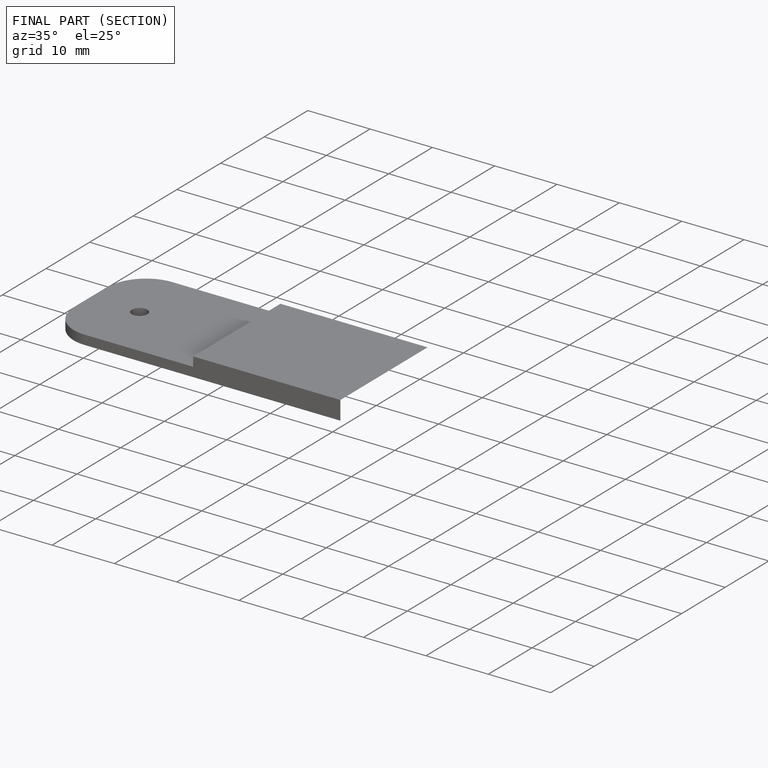
[diagram: finished part — half-section view (interior)]
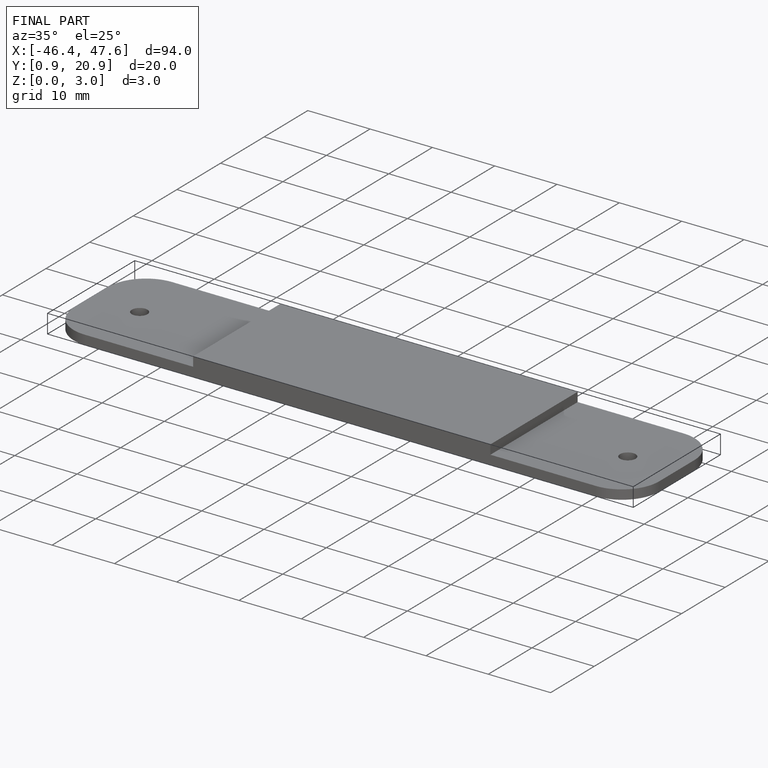
[diagram: finished part — iso view with bounding-box wireframe]
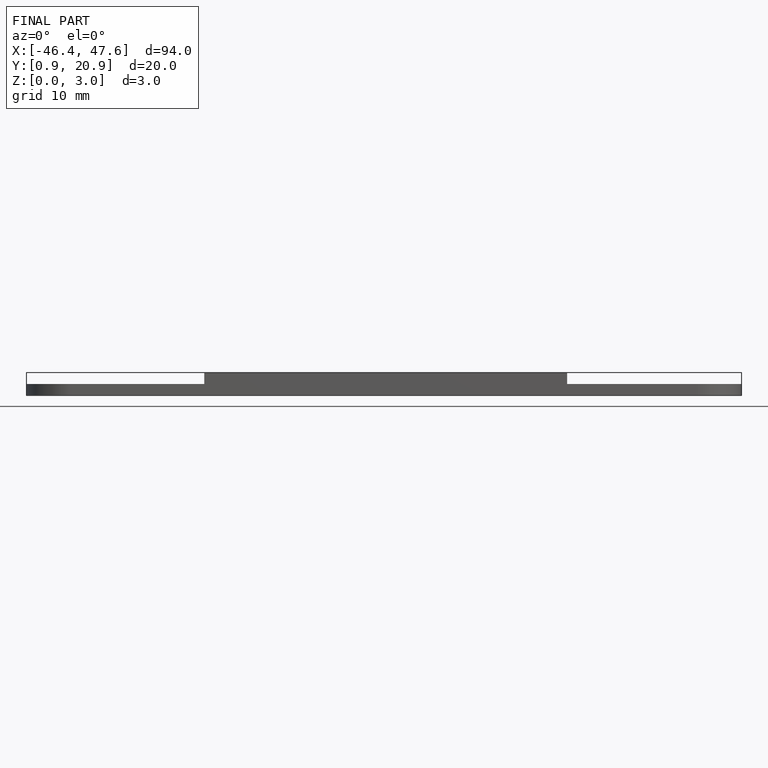
[diagram: finished part — front view with bounding-box wireframe]
